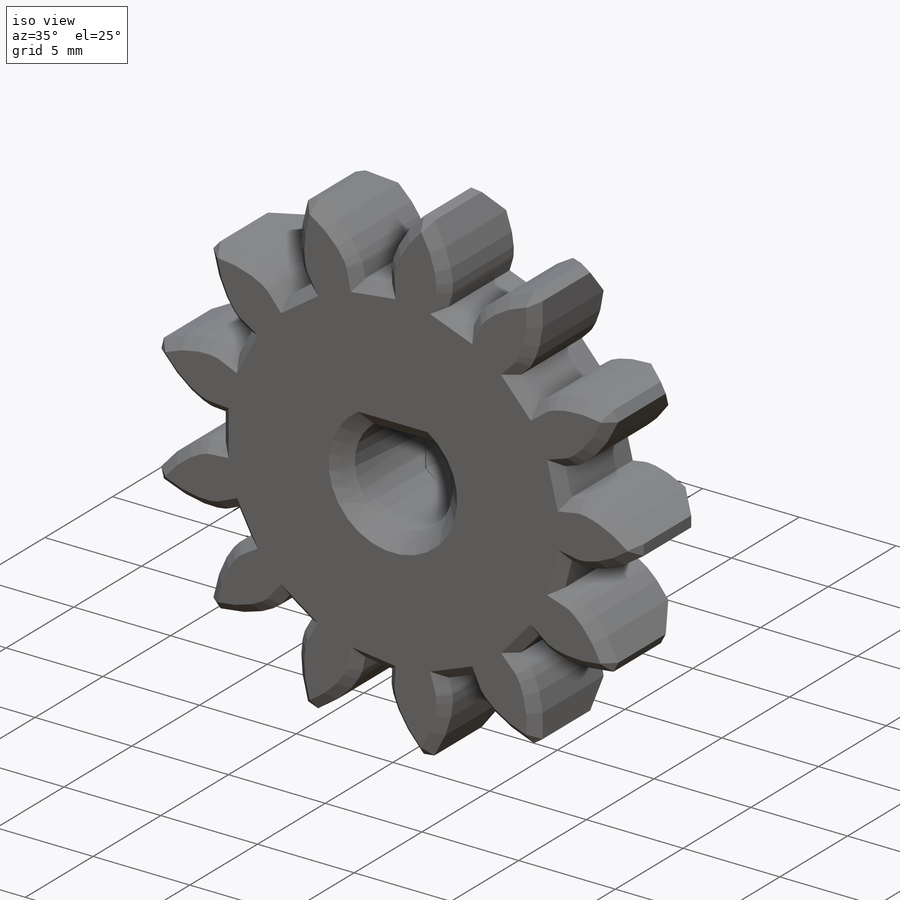
[diagram: iso view]
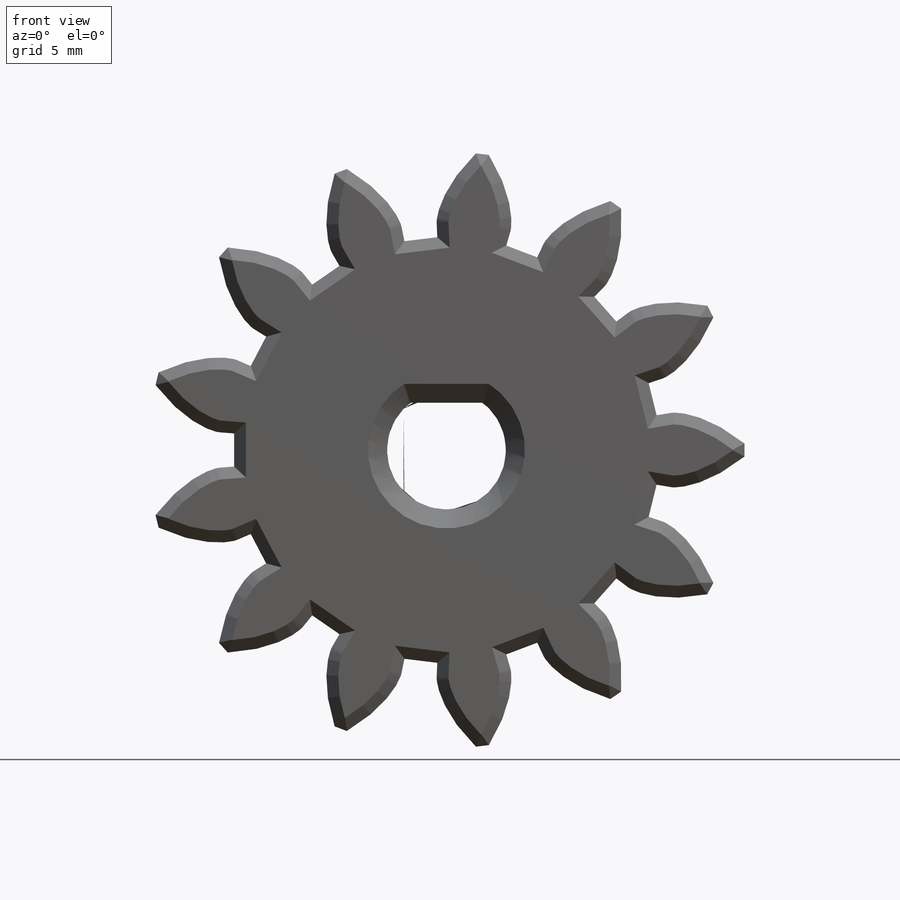
[diagram: front view]
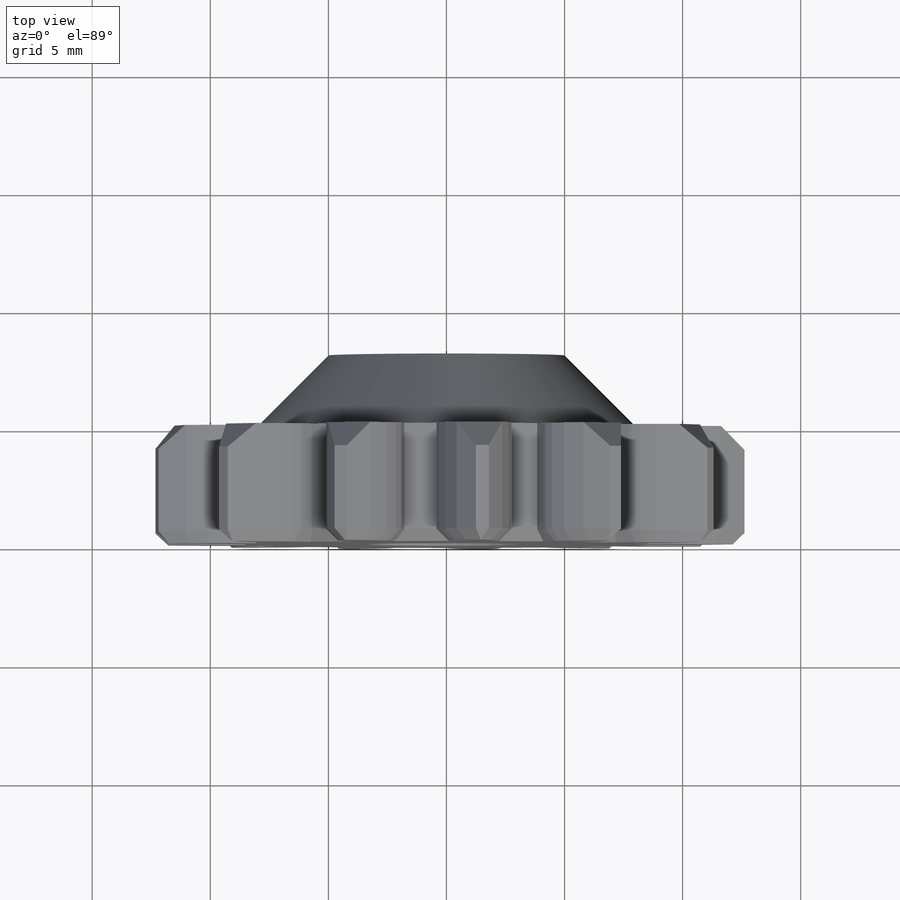
[diagram: top view]
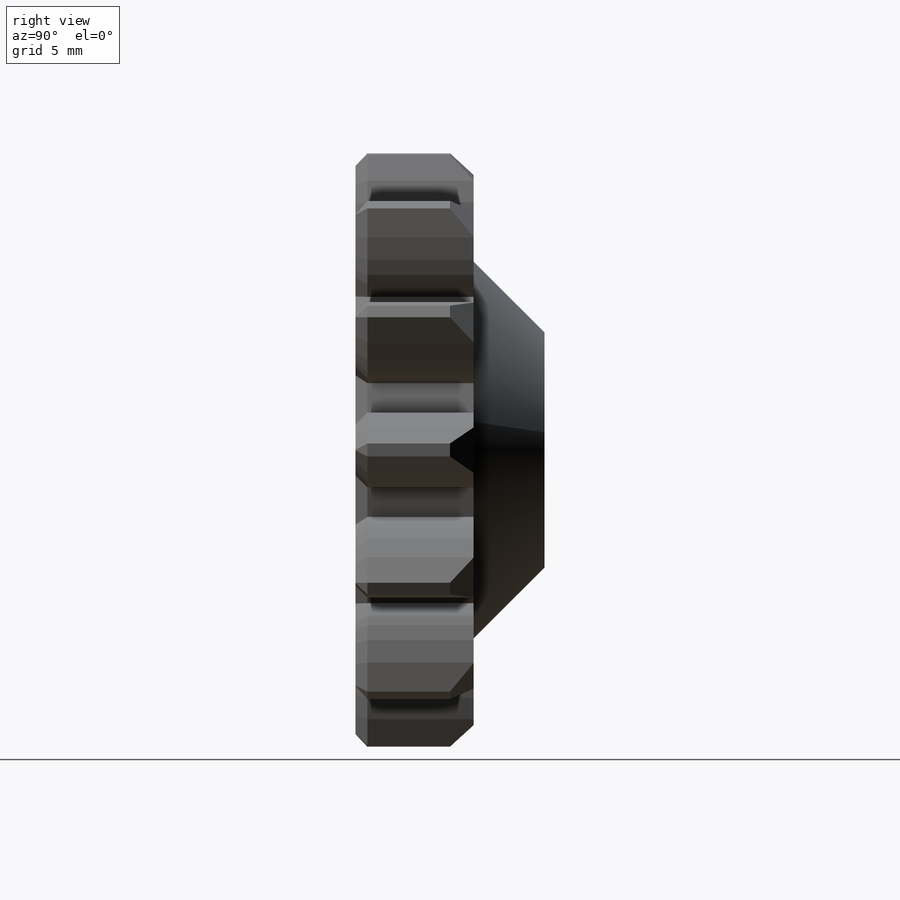
[diagram: right view]
SOLIDWORKS PART (.sldprt)
format: sldprt  version: not decoded by parser v0  size: 730,112 bytes
history: native  units: mm
features: chamfer x6, sketch x4, extrude x2, cut_extrude x2, material x1 (+13 scaffold rows collapsed)
feature tree (28):
  scaffold x13  (default folders/planes/origin — collapsed)
  material  "Custom Plastic"
  sketch  "Model"  dims[D1=3.0mm D2=12.622mm D3=0.554mm D4=2.942mm D5=3.152mm D6=3.166mm D7=3.086mm D8=2.732mm D9=1.936mm D10=8.899mm D11=9.532mm D12=9.668mm D13=10.076mm D14=10.735mm D15=11.605mm]
  extrude  "Boss-Extrude1"  Depth=5mm
  sketch  "Sketch1"  dims[D1=16.0mm]
  extrude  "Boss-Extrude2"  Depth=3mm
  sketch  "Sketch2"  dims[D1=5.05mm D2=2.0mm]
  cut_extrude  "Cut-Extrude1"  Depth=0.9mm
  chamfer  "Chamfer5"  Distance=1mm
  chamfer  "Chamfer6"  Distance=0.5mm Angle=45deg
  sketch  "Sketch3"
  cut_extrude  "Cut-Extrude2"  [1 undecoded]
  chamfer  "Chamfer7"  Distance=0.3mm Angle=45deg
  chamfer  "Chamfer8"  Distance=3mm Angle=45deg
  chamfer  "Chamfer9"  Distance=0.5mm Angle=60deg
  chamfer  "Chamfer10"  Distance=0.8mm Angle=45deg
decode coverage: 12 of 14 modeling features carry decoded parameters
note: 1 parameter value undecoded
note: suppression state not decoded; provenance and decode notes live in map.json
